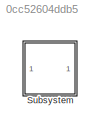
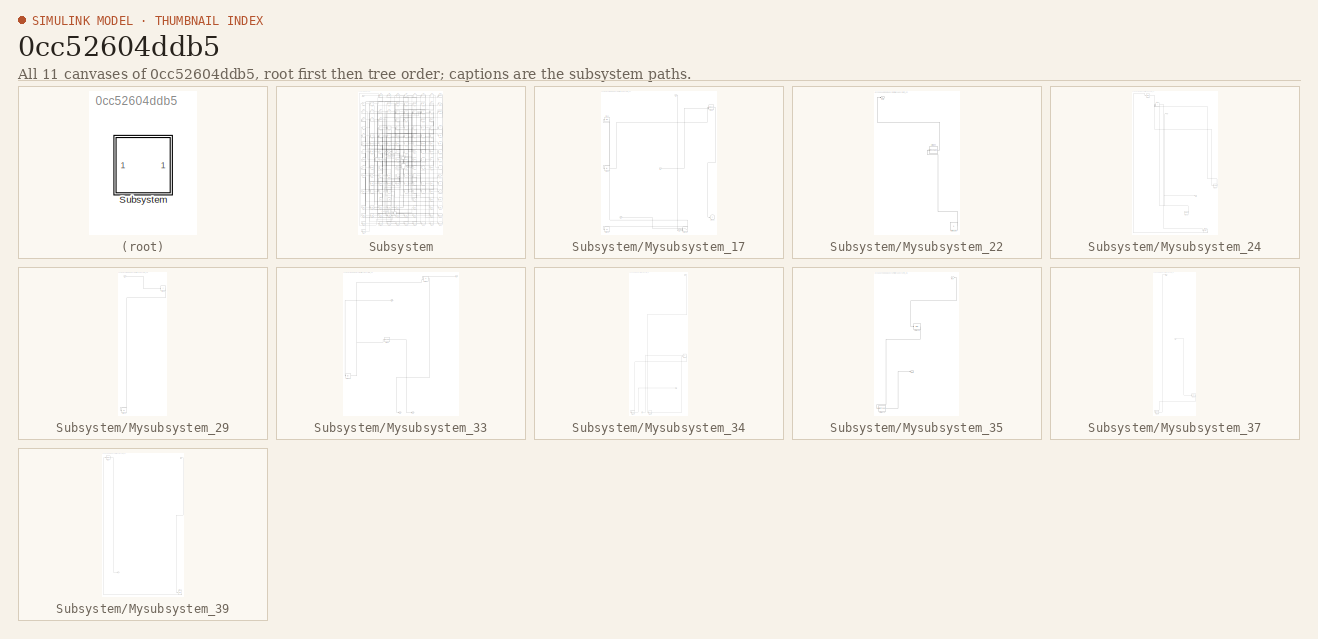
[diagram: thumbnail index - all 11 canvases of the model, root first then tree order]
MODEL slx_0cc52604ddb5
KIND model
CONFIG AbsTol = auto
CONFIG EnableMultiTasking = off
CONFIG FixedStep = auto
CONFIG MaxStep = auto
CONFIG MinStep = auto
CONFIG RelTol = 1e-3
CONFIG SampleTimeConstraint = Unconstrained
CONFIG SolverName = VariableStepAuto
CONFIG StartTime = 0.0
CONFIG StopTime = 10.0
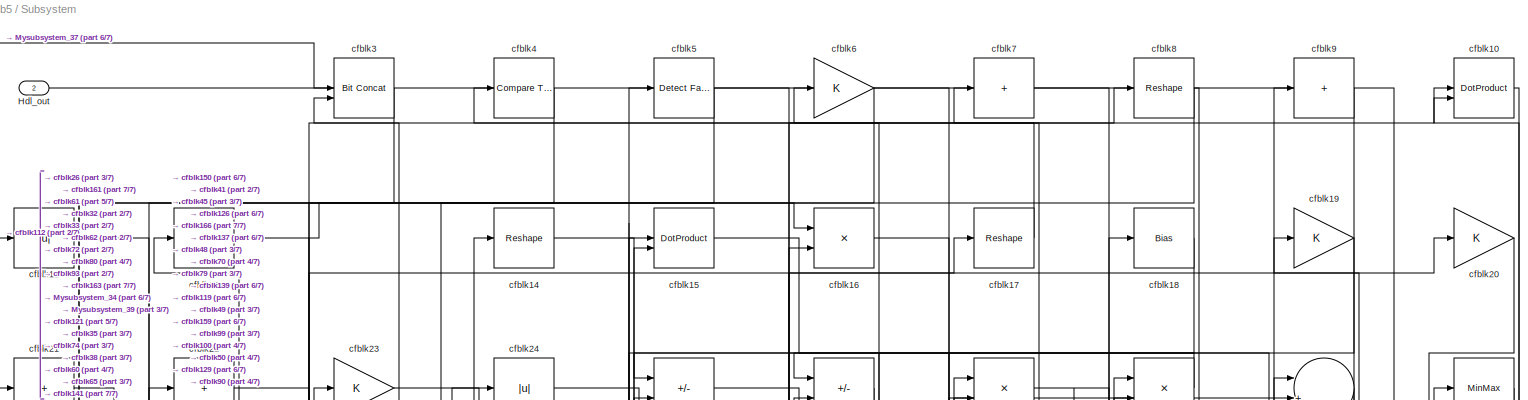
[diagram: Subsystem - part 1/7, full width, top band]
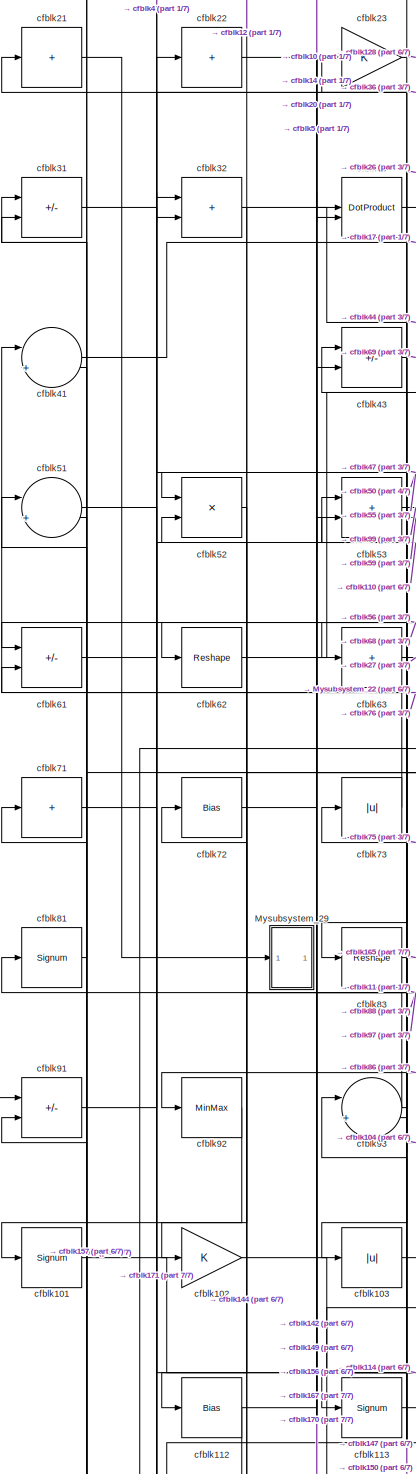
[diagram: Subsystem - part 2/7, middle left region]
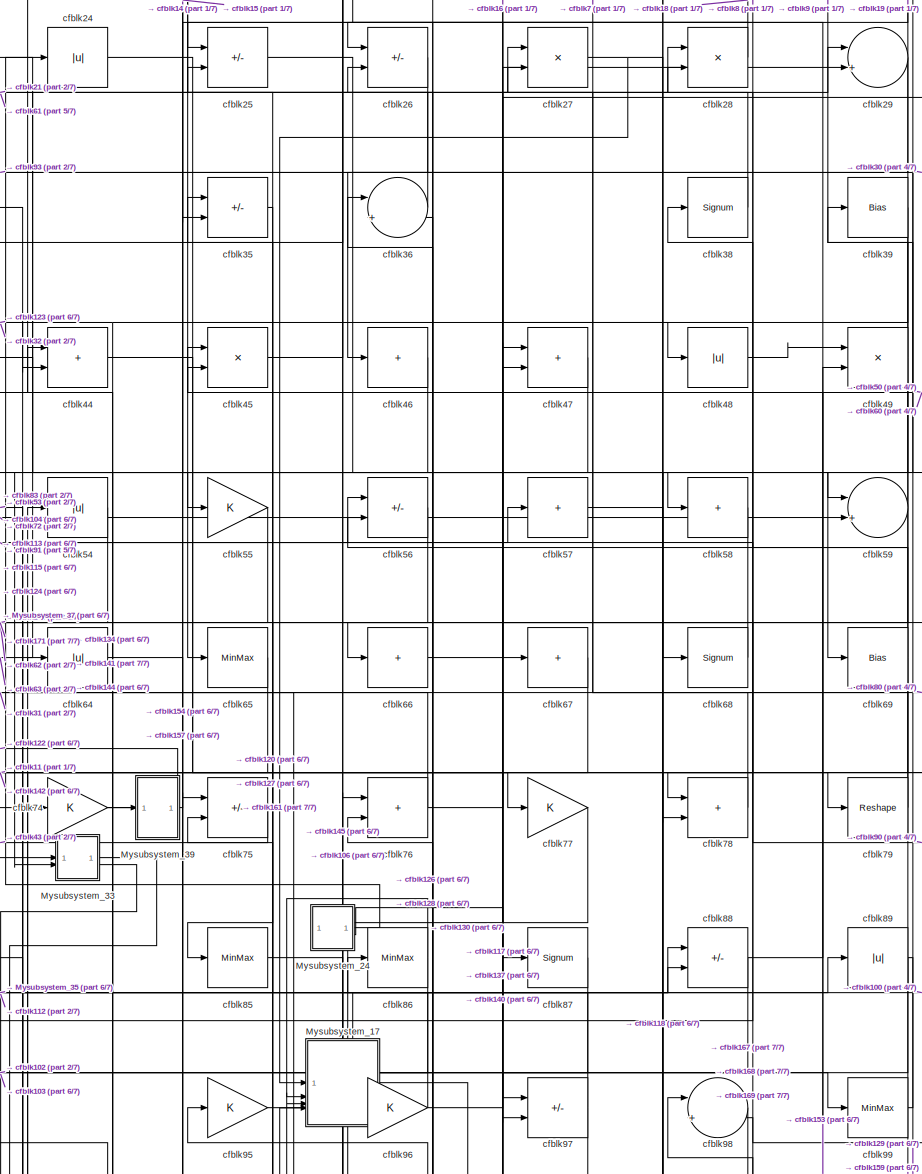
[diagram: Subsystem - part 3/7, central region]
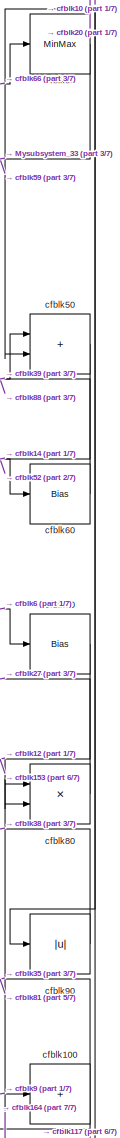
[diagram: Subsystem - part 4/7, middle right region]
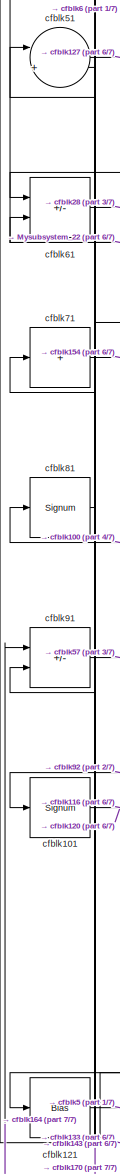
[diagram: Subsystem - part 5/7, middle left region]
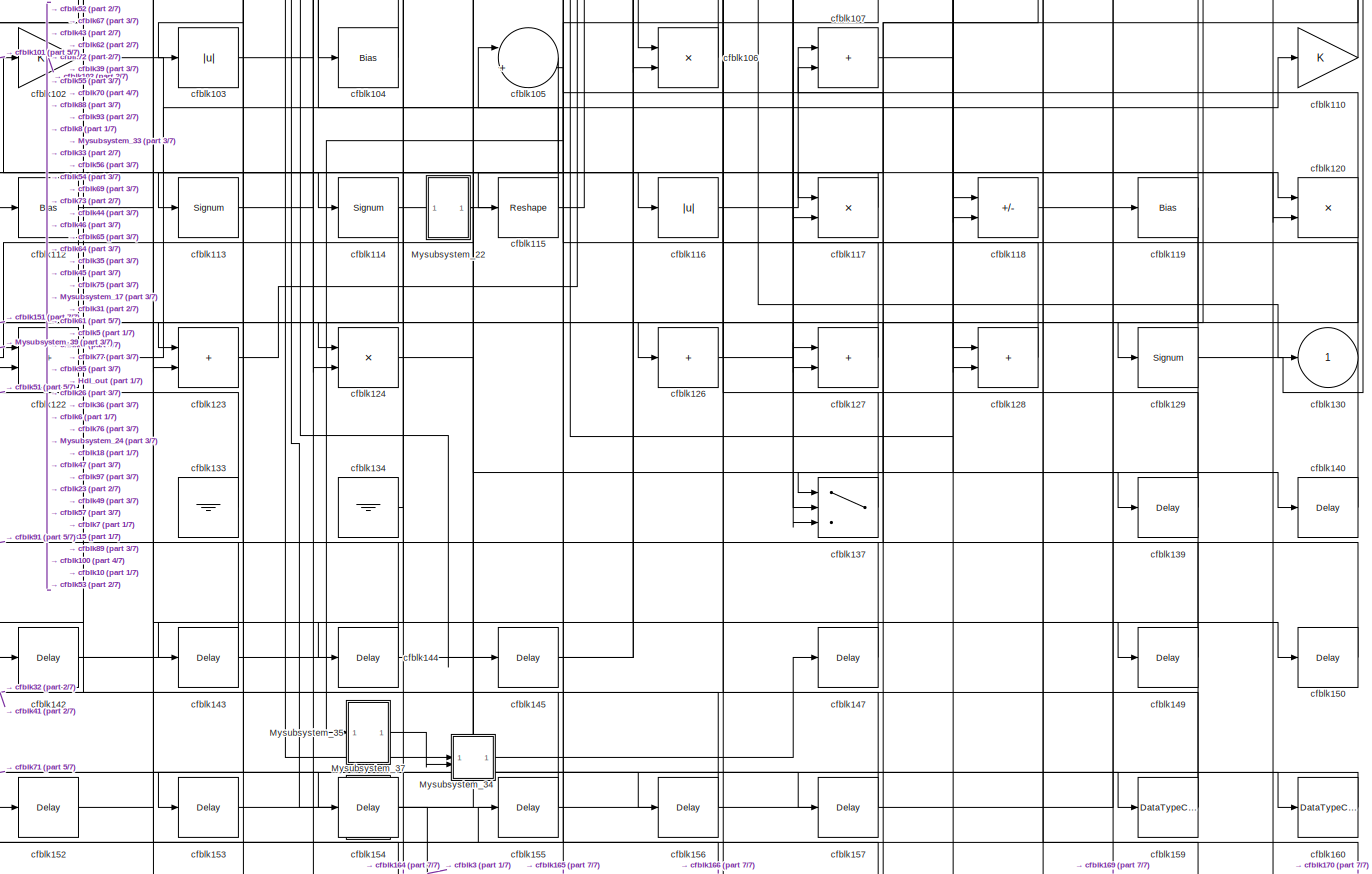
[diagram: Subsystem - part 6/7, full width, bottom band]
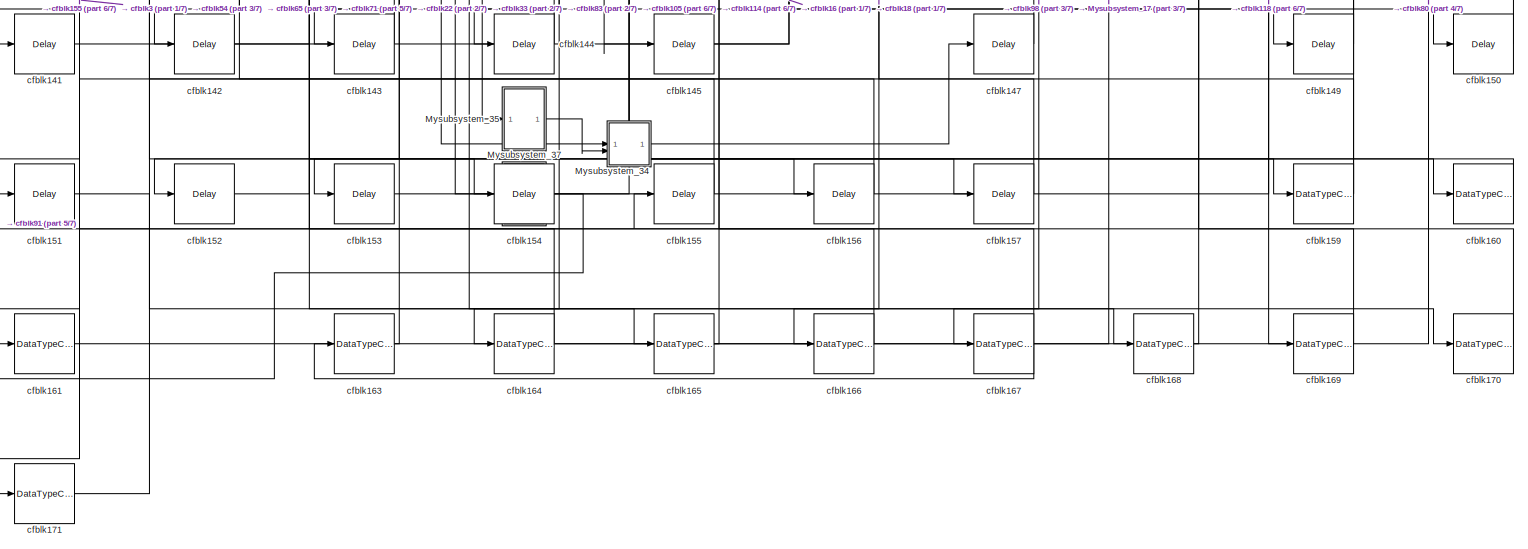
[diagram: Subsystem - part 7/7, full width, bottom band]
BLOCK [SubSystem] Subsystem
BLOCK [Outport] Subsystem/Hdl_out
  OutDataTypeStr = uint8
  Port = 2
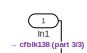
[diagram: Subsystem/Mysubsystem_17 - part 1/3, top center region]
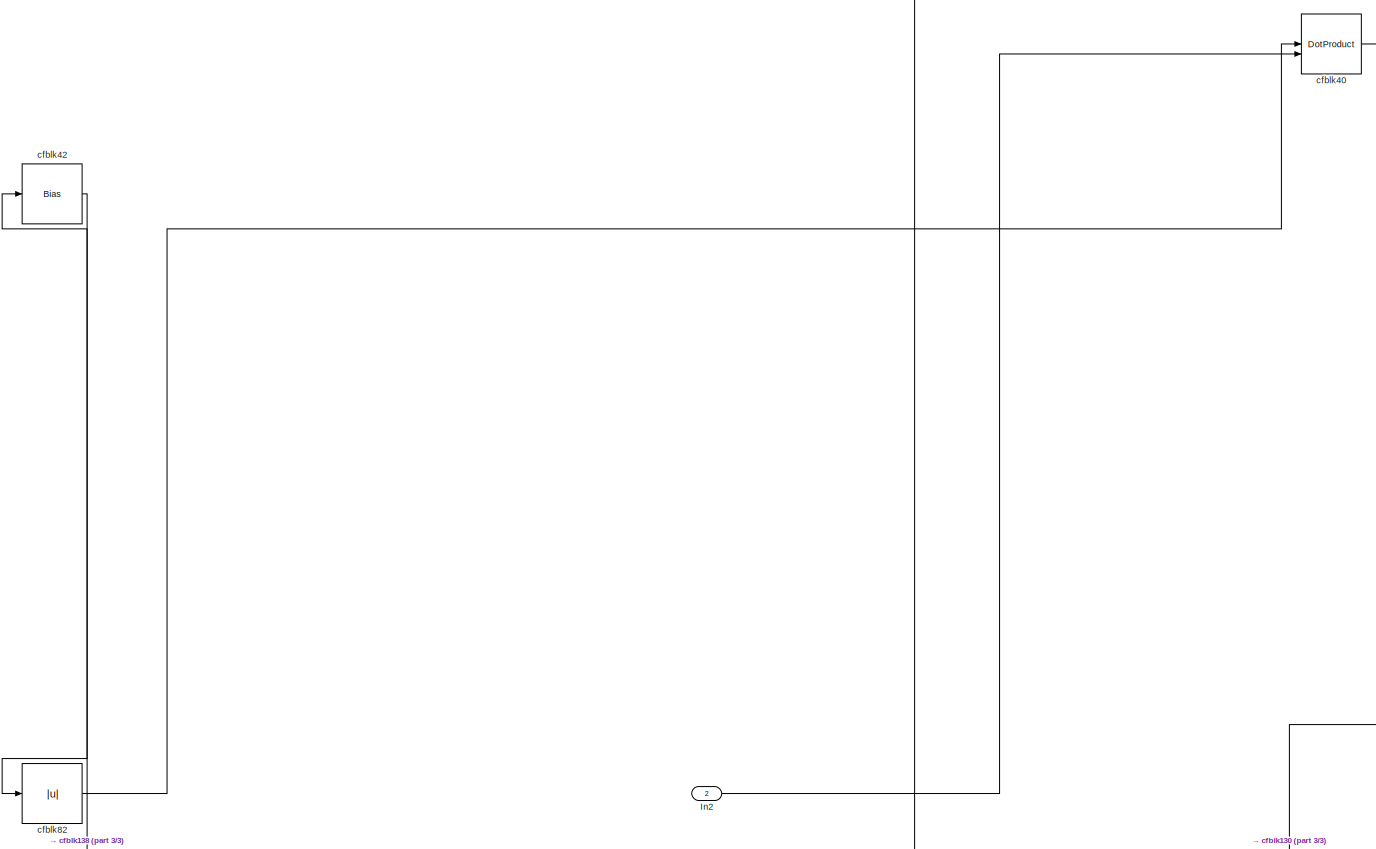
[diagram: Subsystem/Mysubsystem_17 - part 2/3, full width, top band]
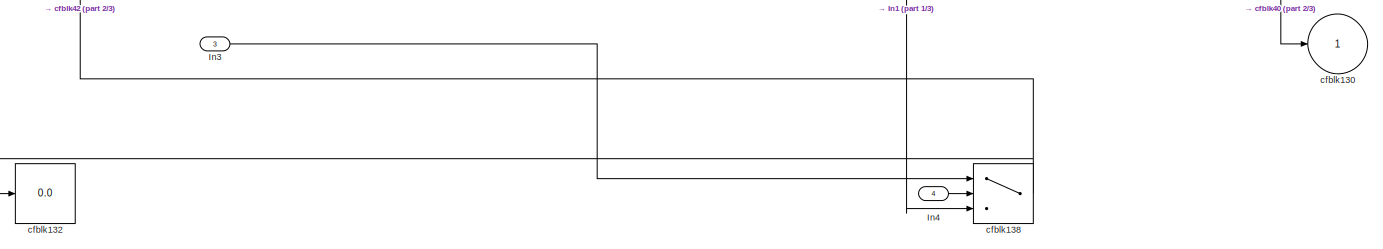
[diagram: Subsystem/Mysubsystem_17 - part 3/3, full width, bottom band]
BLOCK [SubSystem] Subsystem/Mysubsystem_17
  RTWFcnName = Mysubsystem_17
  RTWFcnNameOpts = User specified
  RTWFileNameOpts = Use function name
  RTWSystemCode = Reusable function
  TreatAsAtomicUnit = on
BLOCK [Inport] Subsystem/Mysubsystem_17/In1
BLOCK [Inport] Subsystem/Mysubsystem_17/In2
  Port = 2
BLOCK [Inport] Subsystem/Mysubsystem_17/In3
  Port = 3
BLOCK [Inport] Subsystem/Mysubsystem_17/In4
  Port = 4
BLOCK [Outport] Subsystem/Mysubsystem_17/cfblk130
  VectorParamsAs1DForOutWhenUnconnected = off
BLOCK [Display] Subsystem/Mysubsystem_17/cfblk132
  Decimation = 1
BLOCK [Switch] Subsystem/Mysubsystem_17/cfblk138
  InputSameDT = off
  SaturateOnIntegerOverflow = off
BLOCK [DotProduct] Subsystem/Mysubsystem_17/cfblk40
  OutDataTypeStr = Inherit: Inherit via internal rule
BLOCK [Bias] Subsystem/Mysubsystem_17/cfblk42
  Bias = 0.0
  SaturateOnIntegerOverflow = off
BLOCK [Abs] Subsystem/Mysubsystem_17/cfblk82
  SaturateOnIntegerOverflow = off
BLOCK [SubSystem] Subsystem/Mysubsystem_22
  RTWFcnName = Mysubsystem_22
  RTWFcnNameOpts = User specified
  RTWFileNameOpts = Use function name
  RTWSystemCode = Reusable function
  TreatAsAtomicUnit = on
BLOCK [Outport] Subsystem/Mysubsystem_22/Out1
BLOCK [Constant] Subsystem/Mysubsystem_22/cfblk135
  SampleTime = -1
BLOCK [Reshape] Subsystem/Mysubsystem_22/cfblk94
BLOCK [SubSystem] Subsystem/Mysubsystem_24
  RTWFcnName = Mysubsystem_24
  RTWFcnNameOpts = User specified
  RTWFileNameOpts = Use function name
  RTWSystemCode = Reusable function
  TreatAsAtomicUnit = on
BLOCK [Outport] Subsystem/Mysubsystem_24/Out2
  Port = 2
BLOCK [Reshape] Subsystem/Mysubsystem_24/cfblk109
BLOCK [Sum] Subsystem/Mysubsystem_24/cfblk13
  IconShape = rectangular
BLOCK [Reference] Subsystem/Mysubsystem_24/cfblk136  REF=hdlsllib/Sources/Counter
Limited
  SourceBlock = hdlsllib/Sources/Counter\nLimited
  SourceType = Counter Limited
BLOCK [Delay] Subsystem/Mysubsystem_24/cfblk158
  InputPortMap = u0
  SampleTime = 1
BLOCK [Reference] Subsystem/Mysubsystem_24/cfblk2  REF=hdlsllib/Logic and Bit
Operations/Bit Slice
  SourceBlock = hdlsllib/Logic and Bit\nOperations/Bit Slice
  SourceType = Bit Slice
BLOCK [Outport] Subsystem/Mysubsystem_24/y
BLOCK [SubSystem] Subsystem/Mysubsystem_29
  RTWFcnName = Mysubsystem_29
  RTWFcnNameOpts = User specified
  RTWFileNameOpts = Use function name
  RTWSystemCode = Reusable function
  TreatAsAtomicUnit = on
BLOCK [Inport] Subsystem/Mysubsystem_29/In1
BLOCK [Display] Subsystem/Mysubsystem_29/cfblk131
  Decimation = 1
BLOCK [Sum] Subsystem/Mysubsystem_29/cfblk34
  IconShape = rectangular
  Inputs = +
BLOCK [SubSystem] Subsystem/Mysubsystem_33
  RTWFcnName = Mysubsystem_33
  RTWFcnNameOpts = User specified
  RTWFileNameOpts = Use function name
  RTWSystemCode = Reusable function
  TreatAsAtomicUnit = on
BLOCK [Inport] Subsystem/Mysubsystem_33/In1
BLOCK [Inport] Subsystem/Mysubsystem_33/In2
  Port = 2
BLOCK [Outport] Subsystem/Mysubsystem_33/Out1
BLOCK [Outport] Subsystem/Mysubsystem_33/Out2
  Port = 2
BLOCK [Abs] Subsystem/Mysubsystem_33/cfblk111
  SaturateOnIntegerOverflow = off
BLOCK [Product] Subsystem/Mysubsystem_33/cfblk37
  Inputs = */
  RndMeth = Zero
  SaturateOnIntegerOverflow = on
BLOCK [Reshape] Subsystem/Mysubsystem_33/cfblk84
BLOCK [SubSystem] Subsystem/Mysubsystem_34
  RTWFcnName = Mysubsystem_34
  RTWFcnNameOpts = User specified
  RTWFileNameOpts = Use function name
  RTWSystemCode = Reusable function
  TreatAsAtomicUnit = on
BLOCK [Inport] Subsystem/Mysubsystem_34/In1
BLOCK [Inport] Subsystem/Mysubsystem_34/In2
  Port = 2
BLOCK [Outport] Subsystem/Mysubsystem_34/Out1
BLOCK [Product] Subsystem/Mysubsystem_34/cfblk108
  Inputs = */
  RndMeth = Zero
  SaturateOnIntegerOverflow = on
BLOCK [DataTypeConversion] Subsystem/Mysubsystem_34/cfblk172
  OutDataTypeStr = uint8
  RndMeth = Floor
  SaturateOnIntegerOverflow = off
BLOCK [DataTypeConversion] Subsystem/Mysubsystem_34/cfblk174
  OutDataTypeStr = uint8
  RndMeth = Floor
  SaturateOnIntegerOverflow = off
BLOCK [SubSystem] Subsystem/Mysubsystem_35
  RTWFcnName = Mysubsystem_35
  RTWFcnNameOpts = User specified
  RTWFileNameOpts = Use function name
  RTWSystemCode = Reusable function
  TreatAsAtomicUnit = on
BLOCK [Inport] Subsystem/Mysubsystem_35/In1
BLOCK [Outport] Subsystem/Mysubsystem_35/Out1
BLOCK [Bias] Subsystem/Mysubsystem_35/cfblk125
  Bias = 0.0
  SaturateOnIntegerOverflow = off
BLOCK [DataTypeConversion] Subsystem/Mysubsystem_35/cfblk173
  OutDataTypeStr = uint8
  RndMeth = Floor
  SaturateOnIntegerOverflow = off
BLOCK [SubSystem] Subsystem/Mysubsystem_37
  RTWFcnName = Mysubsystem_37
  RTWFcnNameOpts = User specified
  RTWFileNameOpts = Use function name
  RTWSystemCode = Reusable function
  TreatAsAtomicUnit = on
BLOCK [Inport] Subsystem/Mysubsystem_37/In1
BLOCK [Outport] Subsystem/Mysubsystem_37/Out1
BLOCK [Delay] Subsystem/Mysubsystem_37/cfblk146
  InputPortMap = u0
  SampleTime = 1
BLOCK [DataTypeConversion] Subsystem/Mysubsystem_37/cfblk162
  OutDataTypeStr = uint8
  RndMeth = Floor
  SaturateOnIntegerOverflow = off
BLOCK [SubSystem] Subsystem/Mysubsystem_39
  RTWFcnName = Mysubsystem_39
  RTWFcnNameOpts = User specified
  RTWFileNameOpts = Use function name
  RTWSystemCode = Reusable function
  TreatAsAtomicUnit = on
BLOCK [Inport] Subsystem/Mysubsystem_39/In1
BLOCK [Outport] Subsystem/Mysubsystem_39/Y
BLOCK [Reference] Subsystem/Mysubsystem_39/cfblk1  REF=simulink/Logic and Bit
Operations/Detect
Decrease
  LibrarySourceBlock = hdlsllib/Logic and Bit\nOperations/Detect\nDecrease
  SourceBlock = simulink/Logic and Bit\nOperations/Detect\nDecrease
  SourceType = Detect Decrease
BLOCK [Delay] Subsystem/Mysubsystem_39/cfblk148
  InputPortMap = u0
  SampleTime = 1
BLOCK [DotProduct] Subsystem/cfblk10
  OutDataTypeStr = uint8
BLOCK [Sum] Subsystem/cfblk100
  IconShape = rectangular
  Inputs = +
  OutDataTypeStr = uint8
BLOCK [Signum] Subsystem/cfblk101
BLOCK [Gain] Subsystem/cfblk102
  OutDataTypeStr = uint8
BLOCK [Abs] Subsystem/cfblk103
  OutDataTypeStr = uint8
  SaturateOnIntegerOverflow = off
BLOCK [Bias] Subsystem/cfblk104
  Bias = 0.0
  SaturateOnIntegerOverflow = off
BLOCK [Sum] Subsystem/cfblk105
  Inputs = |++
  OutDataTypeStr = uint8
BLOCK [Product] Subsystem/cfblk106
  Inputs = */
  OutDataTypeStr = uint8
  RndMeth = Zero
  SaturateOnIntegerOverflow = on
BLOCK [Sum] Subsystem/cfblk107
  IconShape = rectangular
  OutDataTypeStr = uint8
BLOCK [Abs] Subsystem/cfblk11
  OutDataTypeStr = uint8
  SaturateOnIntegerOverflow = off
BLOCK [Gain] Subsystem/cfblk110
  OutDataTypeStr = uint8
BLOCK [Bias] Subsystem/cfblk112
  Bias = 0.0
  SaturateOnIntegerOverflow = off
BLOCK [Signum] Subsystem/cfblk113
BLOCK [Signum] Subsystem/cfblk114
BLOCK [Reshape] Subsystem/cfblk115
BLOCK [Abs] Subsystem/cfblk116
  OutDataTypeStr = uint8
  SaturateOnIntegerOverflow = off
BLOCK [Product] Subsystem/cfblk117
  Inputs = */
  OutDataTypeStr = uint8
  RndMeth = Zero
  SaturateOnIntegerOverflow = on
BLOCK [Sum] Subsystem/cfblk118
  IconShape = rectangular
  Inputs = +-
  OutDataTypeStr = uint8
BLOCK [Bias] Subsystem/cfblk119
  Bias = 0.0
  SaturateOnIntegerOverflow = off
BLOCK [Sum] Subsystem/cfblk12
  IconShape = rectangular
  Inputs = +
  OutDataTypeStr = uint8
BLOCK [Product] Subsystem/cfblk120
  Inputs = */
  OutDataTypeStr = uint8
  RndMeth = Zero
  SaturateOnIntegerOverflow = on
BLOCK [Bias] Subsystem/cfblk121
  Bias = 0.0
  SaturateOnIntegerOverflow = off
BLOCK [Sum] Subsystem/cfblk122
  IconShape = rectangular
  OutDataTypeStr = uint8
BLOCK [Sum] Subsystem/cfblk123
  IconShape = rectangular
  OutDataTypeStr = uint8
BLOCK [Product] Subsystem/cfblk124
  Inputs = */
  OutDataTypeStr = uint8
  RndMeth = Zero
  SaturateOnIntegerOverflow = on
BLOCK [Sum] Subsystem/cfblk126
  IconShape = rectangular
  Inputs = +
  OutDataTypeStr = uint8
BLOCK [Sum] Subsystem/cfblk127
  IconShape = rectangular
  OutDataTypeStr = uint8
BLOCK [Sum] Subsystem/cfblk128
  IconShape = rectangular
  OutDataTypeStr = uint8
BLOCK [Signum] Subsystem/cfblk129
BLOCK [Outport] Subsystem/cfblk130
  OutDataTypeStr = uint8
  VectorParamsAs1DForOutWhenUnconnected = off
BLOCK [Ground] Subsystem/cfblk133
BLOCK [Ground] Subsystem/cfblk134
BLOCK [Switch] Subsystem/cfblk137
  InputSameDT = off
  OutDataTypeStr = uint8
  SaturateOnIntegerOverflow = off
BLOCK [Delay] Subsystem/cfblk139
  InputPortMap = u0
  SampleTime = 1
BLOCK [Reshape] Subsystem/cfblk14
BLOCK [Delay] Subsystem/cfblk140
  InputPortMap = u0
  SampleTime = 1
BLOCK [Delay] Subsystem/cfblk141
  InputPortMap = u0
  SampleTime = 1
BLOCK [Delay] Subsystem/cfblk142
  InputPortMap = u0
  SampleTime = 1
BLOCK [Delay] Subsystem/cfblk143
  InputPortMap = u0
  SampleTime = 1
BLOCK [Delay] Subsystem/cfblk144
  InputPortMap = u0
  SampleTime = 1
BLOCK [Delay] Subsystem/cfblk145
  InputPortMap = u0
  SampleTime = 1
BLOCK [Delay] Subsystem/cfblk147
  InputPortMap = u0
  SampleTime = 1
BLOCK [Delay] Subsystem/cfblk149
  InputPortMap = u0
  SampleTime = 1
BLOCK [DotProduct] Subsystem/cfblk15
  OutDataTypeStr = uint8
BLOCK [Delay] Subsystem/cfblk150
  InputPortMap = u0
  SampleTime = 1
BLOCK [Delay] Subsystem/cfblk151
  InputPortMap = u0
  SampleTime = 1
BLOCK [Delay] Subsystem/cfblk152
  InputPortMap = u0
  SampleTime = 1
BLOCK [Delay] Subsystem/cfblk153
  InputPortMap = u0
  SampleTime = 1
BLOCK [Delay] Subsystem/cfblk154
  InputPortMap = u0
  SampleTime = 1
BLOCK [Delay] Subsystem/cfblk155
  InputPortMap = u0
  SampleTime = 1
BLOCK [Delay] Subsystem/cfblk156
  InputPortMap = u0
  SampleTime = 1
BLOCK [Delay] Subsystem/cfblk157
  InputPortMap = u0
  SampleTime = 1
BLOCK [DataTypeConversion] Subsystem/cfblk159
  OutDataTypeStr = uint8
  RndMeth = Floor
  SaturateOnIntegerOverflow = off
BLOCK [Product] Subsystem/cfblk16
  Inputs = */
  OutDataTypeStr = uint8
  RndMeth = Zero
  SaturateOnIntegerOverflow = on
BLOCK [DataTypeConversion] Subsystem/cfblk160
  OutDataTypeStr = uint8
  RndMeth = Floor
  SaturateOnIntegerOverflow = off
BLOCK [DataTypeConversion] Subsystem/cfblk161
  OutDataTypeStr = uint8
  RndMeth = Floor
  SaturateOnIntegerOverflow = off
BLOCK [DataTypeConversion] Subsystem/cfblk163
  OutDataTypeStr = uint8
  RndMeth = Floor
  SaturateOnIntegerOverflow = off
BLOCK [DataTypeConversion] Subsystem/cfblk164
  OutDataTypeStr = uint8
  RndMeth = Floor
  SaturateOnIntegerOverflow = off
BLOCK [DataTypeConversion] Subsystem/cfblk165
  OutDataTypeStr = uint8
  RndMeth = Floor
  SaturateOnIntegerOverflow = off
BLOCK [DataTypeConversion] Subsystem/cfblk166
  OutDataTypeStr = uint8
  RndMeth = Floor
  SaturateOnIntegerOverflow = off
BLOCK [DataTypeConversion] Subsystem/cfblk167
  OutDataTypeStr = uint8
  RndMeth = Floor
  SaturateOnIntegerOverflow = off
BLOCK [DataTypeConversion] Subsystem/cfblk168
  OutDataTypeStr = uint8
  RndMeth = Floor
  SaturateOnIntegerOverflow = off
BLOCK [DataTypeConversion] Subsystem/cfblk169
  OutDataTypeStr = uint8
  RndMeth = Floor
  SaturateOnIntegerOverflow = off
BLOCK [Reshape] Subsystem/cfblk17
BLOCK [DataTypeConversion] Subsystem/cfblk170
  OutDataTypeStr = uint8
  RndMeth = Floor
  SaturateOnIntegerOverflow = off
BLOCK [DataTypeConversion] Subsystem/cfblk171
  OutDataTypeStr = uint8
  RndMeth = Floor
  SaturateOnIntegerOverflow = off
BLOCK [Bias] Subsystem/cfblk18
  Bias = 0.0
  SaturateOnIntegerOverflow = off
BLOCK [Gain] Subsystem/cfblk19
  OutDataTypeStr = uint8
BLOCK [Gain] Subsystem/cfblk20
  OutDataTypeStr = uint8
BLOCK [Sum] Subsystem/cfblk21
  IconShape = rectangular
  Inputs = +
  OutDataTypeStr = uint8
BLOCK [Sum] Subsystem/cfblk22
  IconShape = rectangular
  Inputs = +
  OutDataTypeStr = uint8
BLOCK [Gain] Subsystem/cfblk23
  OutDataTypeStr = uint8
BLOCK [Abs] Subsystem/cfblk24
  OutDataTypeStr = uint8
  SaturateOnIntegerOverflow = off
BLOCK [Sum] Subsystem/cfblk25
  IconShape = rectangular
  Inputs = +-
  OutDataTypeStr = uint8
BLOCK [Sum] Subsystem/cfblk26
  IconShape = rectangular
  Inputs = +-
  OutDataTypeStr = uint8
BLOCK [Product] Subsystem/cfblk27
  Inputs = */
  OutDataTypeStr = uint8
  RndMeth = Zero
  SaturateOnIntegerOverflow = on
BLOCK [Product] Subsystem/cfblk28
  Inputs = */
  OutDataTypeStr = uint8
  RndMeth = Zero
  SaturateOnIntegerOverflow = on
BLOCK [Sum] Subsystem/cfblk29
  Inputs = |++
  OutDataTypeStr = uint8
BLOCK [Reference] Subsystem/cfblk3  REF=hdlsllib/Logic and Bit
Operations/Bit Concat
  SourceBlock = hdlsllib/Logic and Bit\nOperations/Bit Concat
  SourceType = Bit Concat
BLOCK [MinMax] Subsystem/cfblk30
  OutDataTypeStr = uint8
BLOCK [Sum] Subsystem/cfblk31
  IconShape = rectangular
  Inputs = +-
  OutDataTypeStr = uint8
BLOCK [Sum] Subsystem/cfblk32
  IconShape = rectangular
  OutDataTypeStr = uint8
BLOCK [DotProduct] Subsystem/cfblk33
  OutDataTypeStr = uint8
BLOCK [Sum] Subsystem/cfblk35
  IconShape = rectangular
  Inputs = +-
  OutDataTypeStr = uint8
BLOCK [Sum] Subsystem/cfblk36
  Inputs = |++
  OutDataTypeStr = uint8
BLOCK [Signum] Subsystem/cfblk38
BLOCK [Bias] Subsystem/cfblk39
  Bias = 0.0
  SaturateOnIntegerOverflow = off
BLOCK [Reference] Subsystem/cfblk4  REF=hdlsllib/Logic and Bit
Operations/Compare
To Zero
  SourceBlock = hdlsllib/Logic and Bit\nOperations/Compare\nTo Zero
  SourceType = Compare To Zero
BLOCK [Sum] Subsystem/cfblk41
  Inputs = |++
  OutDataTypeStr = uint8
BLOCK [Sum] Subsystem/cfblk43
  IconShape = rectangular
  Inputs = +-
  OutDataTypeStr = uint8
BLOCK [Sum] Subsystem/cfblk44
  IconShape = rectangular
  OutDataTypeStr = uint8
BLOCK [Product] Subsystem/cfblk45
  Inputs = */
  OutDataTypeStr = uint8
  RndMeth = Zero
  SaturateOnIntegerOverflow = on
BLOCK [Sum] Subsystem/cfblk46
  IconShape = rectangular
  Inputs = +
  OutDataTypeStr = uint8
BLOCK [Sum] Subsystem/cfblk47
  IconShape = rectangular
  OutDataTypeStr = uint8
BLOCK [Abs] Subsystem/cfblk48
  OutDataTypeStr = uint8
  SaturateOnIntegerOverflow = off
BLOCK [Product] Subsystem/cfblk49
  Inputs = */
  OutDataTypeStr = uint8
  RndMeth = Zero
  SaturateOnIntegerOverflow = on
BLOCK [Reference] Subsystem/cfblk5  REF=hdlsllib/Logic and Bit
Operations/Detect Fall
Nonpositive
  SourceBlock = hdlsllib/Logic and Bit\nOperations/Detect Fall\nNonpositive
  SourceType = Detect Fall Nonpositive
BLOCK [Sum] Subsystem/cfblk50
  IconShape = rectangular
  OutDataTypeStr = uint8
BLOCK [Sum] Subsystem/cfblk51
  Inputs = |++
  OutDataTypeStr = uint8
BLOCK [Product] Subsystem/cfblk52
  Inputs = */
  OutDataTypeStr = uint8
  RndMeth = Zero
  SaturateOnIntegerOverflow = on
BLOCK [Sum] Subsystem/cfblk53
  IconShape = rectangular
  OutDataTypeStr = uint8
BLOCK [Abs] Subsystem/cfblk54
  OutDataTypeStr = uint8
  SaturateOnIntegerOverflow = off
BLOCK [Gain] Subsystem/cfblk55
  OutDataTypeStr = uint8
BLOCK [Sum] Subsystem/cfblk56
  IconShape = rectangular
  Inputs = +-
  OutDataTypeStr = uint8
BLOCK [Sum] Subsystem/cfblk57
  IconShape = rectangular
  Inputs = +
  OutDataTypeStr = uint8
BLOCK [Sum] Subsystem/cfblk58
  IconShape = rectangular
  Inputs = +
  OutDataTypeStr = uint8
BLOCK [Sum] Subsystem/cfblk59
  Inputs = |++
  OutDataTypeStr = uint8
BLOCK [Gain] Subsystem/cfblk6
  OutDataTypeStr = uint8
BLOCK [Bias] Subsystem/cfblk60
  Bias = 0.0
  SaturateOnIntegerOverflow = off
BLOCK [Sum] Subsystem/cfblk61
  IconShape = rectangular
  Inputs = +-
  OutDataTypeStr = uint8
BLOCK [Reshape] Subsystem/cfblk62
BLOCK [Sum] Subsystem/cfblk63
  IconShape = rectangular
  Inputs = +
  OutDataTypeStr = uint8
BLOCK [Abs] Subsystem/cfblk64
  OutDataTypeStr = uint8
  SaturateOnIntegerOverflow = off
BLOCK [MinMax] Subsystem/cfblk65
  OutDataTypeStr = uint8
BLOCK [Sum] Subsystem/cfblk66
  IconShape = rectangular
  Inputs = +
  OutDataTypeStr = uint8
BLOCK [Sum] Subsystem/cfblk67
  IconShape = rectangular
  Inputs = +
  OutDataTypeStr = uint8
BLOCK [Signum] Subsystem/cfblk68
BLOCK [Bias] Subsystem/cfblk69
  Bias = 0.0
  SaturateOnIntegerOverflow = off
BLOCK [Sum] Subsystem/cfblk7
  IconShape = rectangular
  Inputs = +
  OutDataTypeStr = uint8
BLOCK [Bias] Subsystem/cfblk70
  Bias = 0.0
  SaturateOnIntegerOverflow = off
BLOCK [Sum] Subsystem/cfblk71
  IconShape = rectangular
  Inputs = +
  OutDataTypeStr = uint8
BLOCK [Bias] Subsystem/cfblk72
  Bias = 0.0
  SaturateOnIntegerOverflow = off
BLOCK [Abs] Subsystem/cfblk73
  OutDataTypeStr = uint8
  SaturateOnIntegerOverflow = off
BLOCK [Gain] Subsystem/cfblk74
  OutDataTypeStr = uint8
BLOCK [Sum] Subsystem/cfblk75
  IconShape = rectangular
  Inputs = +-
  OutDataTypeStr = uint8
BLOCK [Sum] Subsystem/cfblk76
  IconShape = rectangular
  OutDataTypeStr = uint8
BLOCK [Gain] Subsystem/cfblk77
  OutDataTypeStr = uint8
BLOCK [Sum] Subsystem/cfblk78
  IconShape = rectangular
  OutDataTypeStr = uint8
BLOCK [Reshape] Subsystem/cfblk79
BLOCK [Reshape] Subsystem/cfblk8
BLOCK [Product] Subsystem/cfblk80
  Inputs = */
  OutDataTypeStr = uint8
  RndMeth = Zero
  SaturateOnIntegerOverflow = on
BLOCK [Signum] Subsystem/cfblk81
BLOCK [Reshape] Subsystem/cfblk83
BLOCK [MinMax] Subsystem/cfblk85
  OutDataTypeStr = uint8
BLOCK [MinMax] Subsystem/cfblk86
  OutDataTypeStr = uint8
BLOCK [Signum] Subsystem/cfblk87
BLOCK [Sum] Subsystem/cfblk88
  IconShape = rectangular
  Inputs = +-
  OutDataTypeStr = uint8
BLOCK [Abs] Subsystem/cfblk89
  OutDataTypeStr = uint8
  SaturateOnIntegerOverflow = off
BLOCK [Sum] Subsystem/cfblk9
  IconShape = rectangular
  Inputs = +
  OutDataTypeStr = uint8
BLOCK [Abs] Subsystem/cfblk90
  OutDataTypeStr = uint8
  SaturateOnIntegerOverflow = off
BLOCK [Sum] Subsystem/cfblk91
  IconShape = rectangular
  Inputs = +-
  OutDataTypeStr = uint8
BLOCK [MinMax] Subsystem/cfblk92
  OutDataTypeStr = uint8
BLOCK [Sum] Subsystem/cfblk93
  Inputs = |++
  OutDataTypeStr = uint8
BLOCK [Gain] Subsystem/cfblk95
  OutDataTypeStr = uint8
BLOCK [Gain] Subsystem/cfblk96
  OutDataTypeStr = uint8
BLOCK [Sum] Subsystem/cfblk97
  IconShape = rectangular
  Inputs = +-
  OutDataTypeStr = uint8
BLOCK [Sum] Subsystem/cfblk98
  Inputs = |++
  OutDataTypeStr = uint8
BLOCK [MinMax] Subsystem/cfblk99
  OutDataTypeStr = uint8
LINE Subsystem/Mysubsystem_17/In1:1 -> Subsystem/Mysubsystem_17/cfblk138:3
LINE Subsystem/Mysubsystem_17/In2:1 -> Subsystem/Mysubsystem_17/cfblk40:2
LINE Subsystem/Mysubsystem_17/In3:1 -> Subsystem/Mysubsystem_17/cfblk138:1
LINE Subsystem/Mysubsystem_17/In4:1 -> Subsystem/Mysubsystem_17/cfblk138:2
NET Subsystem/Mysubsystem_17/cfblk138:1 -> Subsystem/Mysubsystem_17/cfblk132:1, Subsystem/Mysubsystem_17/cfblk42:1
LINE Subsystem/Mysubsystem_17/cfblk40:1 -> Subsystem/Mysubsystem_17/cfblk130:1
LINE Subsystem/Mysubsystem_17/cfblk42:1 -> Subsystem/Mysubsystem_17/cfblk82:1
LINE Subsystem/Mysubsystem_17/cfblk82:1 -> Subsystem/Mysubsystem_17/cfblk40:1
LINE Subsystem/Mysubsystem_17:1 -> Subsystem/cfblk130:1
LINE Subsystem/Mysubsystem_22/cfblk135:1 -> Subsystem/Mysubsystem_22/cfblk94:1
LINE Subsystem/Mysubsystem_22/cfblk94:1 -> Subsystem/Mysubsystem_22/Out1:1
NET Subsystem/Mysubsystem_22:1 -> Subsystem/cfblk31:1, Subsystem/cfblk61:2
LINE Subsystem/Mysubsystem_24/cfblk109:1 -> Subsystem/Mysubsystem_24/cfblk13:1
NET Subsystem/Mysubsystem_24/cfblk136:1 -> Subsystem/Mysubsystem_24/cfblk13:2, Subsystem/Mysubsystem_24/y:1
NET Subsystem/Mysubsystem_24/cfblk13:1 -> Subsystem/Mysubsystem_24/Out2:1, Subsystem/Mysubsystem_24/cfblk158:1
LINE Subsystem/Mysubsystem_24/cfblk158:1 -> Subsystem/Mysubsystem_24/cfblk2:1
LINE Subsystem/Mysubsystem_24/cfblk2:1 -> Subsystem/Mysubsystem_24/cfblk109:1
LINE Subsystem/Mysubsystem_24:1 -> Subsystem/cfblk24:1
LINE Subsystem/Mysubsystem_24:2 -> Subsystem/cfblk117:2
LINE Subsystem/Mysubsystem_29/In1:1 -> Subsystem/Mysubsystem_29/cfblk34:1
LINE Subsystem/Mysubsystem_29/cfblk34:1 -> Subsystem/Mysubsystem_29/cfblk131:1
LINE Subsystem/Mysubsystem_33/In1:1 -> Subsystem/Mysubsystem_33/cfblk37:1
LINE Subsystem/Mysubsystem_33/In2:1 -> Subsystem/Mysubsystem_33/cfblk111:1
NET Subsystem/Mysubsystem_33/cfblk111:1 -> Subsystem/Mysubsystem_33/cfblk37:2, Subsystem/Mysubsystem_33/cfblk84:1
LINE Subsystem/Mysubsystem_33/cfblk37:1 -> Subsystem/Mysubsystem_33/Out1:1
LINE Subsystem/Mysubsystem_33/cfblk84:1 -> Subsystem/Mysubsystem_33/Out2:1
LINE Subsystem/Mysubsystem_33:1 -> Subsystem/cfblk145:1
LINE Subsystem/Mysubsystem_33:2 -> Subsystem/Mysubsystem_37:1
LINE Subsystem/Mysubsystem_34/In1:1 -> Subsystem/Mysubsystem_34/cfblk174:1
LINE Subsystem/Mysubsystem_34/In2:1 -> Subsystem/Mysubsystem_34/cfblk108:1
LINE Subsystem/Mysubsystem_34/cfblk108:1 -> Subsystem/Mysubsystem_34/cfblk172:1
LINE Subsystem/Mysubsystem_34/cfblk172:1 -> Subsystem/Mysubsystem_34/Out1:1
LINE Subsystem/Mysubsystem_34/cfblk174:1 -> Subsystem/Mysubsystem_34/cfblk108:2
LINE Subsystem/Mysubsystem_34:1 -> Subsystem/cfblk147:1
LINE Subsystem/Mysubsystem_35/In1:1 -> Subsystem/Mysubsystem_35/cfblk125:1
LINE Subsystem/Mysubsystem_35/cfblk125:1 -> Subsystem/Mysubsystem_35/cfblk173:1
LINE Subsystem/Mysubsystem_35/cfblk173:1 -> Subsystem/Mysubsystem_35/Out1:1
LINE Subsystem/Mysubsystem_35:1 -> Subsystem/Mysubsystem_34:2
LINE Subsystem/Mysubsystem_37/In1:1 -> Subsystem/Mysubsystem_37/cfblk146:1
LINE Subsystem/Mysubsystem_37/cfblk146:1 -> Subsystem/Mysubsystem_37/cfblk162:1
LINE Subsystem/Mysubsystem_37/cfblk162:1 -> Subsystem/Mysubsystem_37/Out1:1
LINE Subsystem/Mysubsystem_37:1 -> Subsystem/cfblk3:1
LINE Subsystem/Mysubsystem_39/In1:1 -> Subsystem/Mysubsystem_39/cfblk148:1
LINE Subsystem/Mysubsystem_39/cfblk148:1 -> Subsystem/Mysubsystem_39/cfblk1:1
LINE Subsystem/Mysubsystem_39/cfblk1:1 -> Subsystem/Mysubsystem_39/Y:1
LINE Subsystem/Mysubsystem_39:1 -> Subsystem/cfblk122:1
NET Subsystem/cfblk100:1 -> Subsystem/cfblk117:1, Subsystem/cfblk35:1, Subsystem/cfblk81:1
NET Subsystem/cfblk101:1 -> Subsystem/cfblk116:1, Subsystem/cfblk120:2
LINE Subsystem/cfblk102:1 -> Subsystem/cfblk114:1
LINE Subsystem/cfblk103:1 -> Subsystem/cfblk56:2
LINE Subsystem/cfblk104:1 -> Subsystem/cfblk73:1
LINE Subsystem/cfblk105:1 -> Subsystem/cfblk164:1
LINE Subsystem/cfblk106:1 -> Subsystem/cfblk95:1
LINE Subsystem/cfblk107:1 -> Subsystem/cfblk118:1
LINE Subsystem/cfblk10:1 -> Subsystem/cfblk90:1
LINE Subsystem/cfblk110:1 -> Subsystem/cfblk53:1
NET Subsystem/cfblk112:1 -> Subsystem/cfblk11:1, Subsystem/cfblk88:2
LINE Subsystem/cfblk113:1 -> Subsystem/cfblk88:1
NET Subsystem/cfblk114:1 -> Subsystem/cfblk123:2, Subsystem/cfblk151:1, Subsystem/cfblk160:1
LINE Subsystem/cfblk115:1 -> Subsystem/cfblk54:1
LINE Subsystem/cfblk116:1 -> Subsystem/cfblk107:1
LINE Subsystem/cfblk117:1 -> Subsystem/cfblk113:1
LINE Subsystem/cfblk118:1 -> Subsystem/cfblk169:1
LINE Subsystem/cfblk119:1 -> Subsystem/cfblk137:1
LINE Subsystem/cfblk11:1 -> Subsystem/cfblk79:1
NET Subsystem/cfblk120:1 -> Subsystem/cfblk126:1, Subsystem/cfblk45:1
LINE Subsystem/cfblk121:1 -> Subsystem/cfblk5:1
LINE Subsystem/cfblk122:1 -> Subsystem/cfblk110:1
LINE Subsystem/cfblk123:1 -> Subsystem/Mysubsystem_17:3
LINE Subsystem/cfblk124:1 -> Subsystem/cfblk140:1
NET Subsystem/cfblk126:1 -> Subsystem/cfblk47:2, Subsystem/cfblk6:1
LINE Subsystem/cfblk127:1 -> Subsystem/cfblk75:2
LINE Subsystem/cfblk128:1 -> Subsystem/cfblk36:1
LINE Subsystem/cfblk129:1 -> Subsystem/cfblk10:1
NET Subsystem/cfblk12:1 -> Subsystem/cfblk16:1, Subsystem/cfblk80:2
LINE Subsystem/cfblk133:1 -> Subsystem/cfblk51:1
LINE Subsystem/cfblk134:1 -> Subsystem/cfblk44:1
LINE Subsystem/cfblk137:1 -> Subsystem/cfblk76:2
LINE Subsystem/cfblk139:1 -> Subsystem/cfblk127:1
LINE Subsystem/cfblk140:1 -> Subsystem/cfblk47:1
LINE Subsystem/cfblk141:1 -> Subsystem/cfblk16:2
LINE Subsystem/cfblk142:1 -> Subsystem/cfblk43:2
LINE Subsystem/cfblk143:1 -> Subsystem/cfblk91:2
LINE Subsystem/cfblk144:1 -> Subsystem/cfblk52:2
LINE Subsystem/cfblk145:1 -> Subsystem/cfblk76:1
LINE Subsystem/cfblk147:1 -> Subsystem/cfblk53:2
LINE Subsystem/cfblk149:1 -> Subsystem/cfblk107:2
NET Subsystem/cfblk14:1 -> Subsystem/cfblk60:1, Subsystem/cfblk65:1
LINE Subsystem/cfblk150:1 -> Subsystem/cfblk93:1
LINE Subsystem/cfblk151:1 -> Subsystem/cfblk168:1
LINE Subsystem/cfblk152:1 -> Subsystem/cfblk159:1
LINE Subsystem/cfblk153:1 -> Subsystem/cfblk49:2
LINE Subsystem/cfblk154:1 -> Subsystem/cfblk75:1
LINE Subsystem/cfblk155:1 -> Subsystem/cfblk122:2
LINE Subsystem/cfblk156:1 -> Subsystem/cfblk32:1
LINE Subsystem/cfblk157:1 -> Subsystem/cfblk41:2
NET Subsystem/cfblk159:1 -> Subsystem/Hdl_out:1, Subsystem/cfblk26:2
LINE Subsystem/cfblk15:1 -> Subsystem/cfblk119:1
LINE Subsystem/cfblk160:1 -> Subsystem/cfblk152:1
NET Subsystem/cfblk161:1 -> Subsystem/Mysubsystem_17:4, Subsystem/cfblk18:1
LINE Subsystem/cfblk163:1 -> Subsystem/cfblk3:2
NET Subsystem/cfblk164:1 -> Subsystem/cfblk80:1, Subsystem/cfblk91:1
LINE Subsystem/cfblk165:1 -> Subsystem/cfblk105:1
LINE Subsystem/cfblk166:1 -> Subsystem/cfblk105:2
NET Subsystem/cfblk167:1 -> Subsystem/cfblk163:1, Subsystem/cfblk33:1
LINE Subsystem/cfblk168:1 -> Subsystem/cfblk98:1
LINE Subsystem/cfblk169:1 -> Subsystem/cfblk98:2
LINE Subsystem/cfblk16:1 -> Subsystem/cfblk48:1
NET Subsystem/cfblk170:1 -> Subsystem/cfblk155:1, Subsystem/cfblk71:1
LINE Subsystem/cfblk171:1 -> Subsystem/cfblk22:1
LINE Subsystem/cfblk17:1 -> Subsystem/cfblk4:1
NET Subsystem/cfblk18:1 -> Subsystem/cfblk137:3, Subsystem/cfblk166:1, Subsystem/cfblk35:2
LINE Subsystem/cfblk19:1 -> Subsystem/cfblk26:1
LINE Subsystem/cfblk20:1 -> Subsystem/cfblk50:2
LINE Subsystem/cfblk21:1 -> Subsystem/Mysubsystem_29:1
LINE Subsystem/cfblk22:1 -> Subsystem/cfblk170:1
LINE Subsystem/cfblk23:1 -> Subsystem/cfblk128:1
LINE Subsystem/cfblk24:1 -> Subsystem/cfblk97:1
NET Subsystem/cfblk25:1 -> Subsystem/cfblk58:1, Subsystem/cfblk87:1
LINE Subsystem/cfblk26:1 -> Subsystem/cfblk93:2
NET Subsystem/cfblk27:1 -> Subsystem/Mysubsystem_17:1, Subsystem/cfblk68:1
LINE Subsystem/cfblk28:1 -> Subsystem/cfblk25:1
LINE Subsystem/cfblk29:1 -> Subsystem/cfblk46:1
NET Subsystem/cfblk30:1 -> Subsystem/Mysubsystem_33:1, Subsystem/cfblk59:1
LINE Subsystem/cfblk31:1 -> Subsystem/cfblk55:1
NET Subsystem/cfblk32:1 -> Subsystem/cfblk112:1, Subsystem/cfblk44:2
LINE Subsystem/cfblk33:1 -> Subsystem/cfblk128:2
LINE Subsystem/cfblk35:1 -> Subsystem/cfblk115:1
LINE Subsystem/cfblk36:1 -> Subsystem/cfblk21:1
LINE Subsystem/cfblk38:1 -> Subsystem/cfblk15:2
NET Subsystem/cfblk39:1 -> Subsystem/cfblk123:1, Subsystem/cfblk74:1
LINE Subsystem/cfblk3:1 -> Subsystem/cfblk161:1
LINE Subsystem/cfblk41:1 -> Subsystem/cfblk17:1
LINE Subsystem/cfblk43:1 -> Subsystem/cfblk69:1
NET Subsystem/cfblk44:1 -> Subsystem/cfblk77:1, Subsystem/cfblk97:2
LINE Subsystem/cfblk45:1 -> Subsystem/cfblk8:1
NET Subsystem/cfblk46:1 -> Subsystem/Mysubsystem_33:2, Subsystem/cfblk144:1, Subsystem/cfblk45:2
LINE Subsystem/cfblk47:1 -> Subsystem/cfblk63:1
LINE Subsystem/cfblk48:1 -> Subsystem/cfblk49:1
NET Subsystem/cfblk49:1 -> Subsystem/cfblk118:2, Subsystem/cfblk9:1
LINE Subsystem/cfblk4:1 -> Subsystem/cfblk32:2
LINE Subsystem/cfblk50:1 -> Subsystem/cfblk52:1
LINE Subsystem/cfblk51:1 -> Subsystem/cfblk127:2
LINE Subsystem/cfblk52:1 -> Subsystem/cfblk92:1
LINE Subsystem/cfblk53:1 -> Subsystem/cfblk99:1
LINE Subsystem/cfblk54:1 -> Subsystem/cfblk171:1
LINE Subsystem/cfblk55:1 -> Subsystem/cfblk143:1
NET Subsystem/cfblk56:1 -> Subsystem/cfblk124:2, Subsystem/cfblk83:1
LINE Subsystem/cfblk57:1 -> Subsystem/cfblk120:1
LINE Subsystem/cfblk58:1 -> Subsystem/cfblk85:1
NET Subsystem/cfblk59:1 -> Subsystem/cfblk25:2, Subsystem/cfblk56:1, Subsystem/cfblk78:1
NET Subsystem/cfblk5:1 -> Subsystem/cfblk150:1, Subsystem/cfblk33:2
LINE Subsystem/cfblk60:1 -> Subsystem/cfblk39:1
NET Subsystem/cfblk61:1 -> Subsystem/cfblk121:1, Subsystem/cfblk28:1
NET Subsystem/cfblk62:1 -> Subsystem/cfblk10:2, Subsystem/cfblk149:1, Subsystem/cfblk14:1
LINE Subsystem/cfblk63:1 -> Subsystem/cfblk27:1
LINE Subsystem/cfblk64:1 -> Subsystem/cfblk157:1
NET Subsystem/cfblk65:1 -> Subsystem/cfblk124:1, Subsystem/cfblk141:1
LINE Subsystem/cfblk66:1 -> Subsystem/cfblk30:1
LINE Subsystem/cfblk67:1 -> Subsystem/cfblk142:1
LINE Subsystem/cfblk68:1 -> Subsystem/cfblk62:1
NET Subsystem/cfblk69:1 -> Subsystem/cfblk104:1, Subsystem/cfblk28:2, Subsystem/cfblk66:1, Subsystem/cfblk78:2
NET Subsystem/cfblk6:1 -> Subsystem/cfblk61:1, Subsystem/cfblk70:1
LINE Subsystem/cfblk70:1 -> Subsystem/cfblk153:1
LINE Subsystem/cfblk71:1 -> Subsystem/cfblk154:1
NET Subsystem/cfblk72:1 -> Subsystem/cfblk156:1, Subsystem/cfblk20:1, Subsystem/cfblk59:2
LINE Subsystem/cfblk73:1 -> Subsystem/cfblk41:1
LINE Subsystem/cfblk74:1 -> Subsystem/cfblk15:1
LINE Subsystem/cfblk75:1 -> Subsystem/cfblk43:1
NET Subsystem/cfblk76:1 -> Subsystem/cfblk29:2, Subsystem/cfblk31:2, Subsystem/cfblk67:1
LINE Subsystem/cfblk77:1 -> Subsystem/cfblk106:1
NET Subsystem/cfblk78:1 -> Subsystem/cfblk36:2, Subsystem/cfblk64:1
LINE Subsystem/cfblk79:1 -> Subsystem/cfblk7:1
LINE Subsystem/cfblk7:1 -> Subsystem/cfblk139:1
LINE Subsystem/cfblk80:1 -> Subsystem/cfblk27:2
LINE Subsystem/cfblk81:1 -> Subsystem/cfblk51:2
LINE Subsystem/cfblk83:1 -> Subsystem/cfblk165:1
LINE Subsystem/cfblk85:1 -> Subsystem/cfblk106:2
NET Subsystem/cfblk86:1 -> Subsystem/Mysubsystem_17:2, Subsystem/cfblk102:1
LINE Subsystem/cfblk87:1 -> Subsystem/cfblk96:1
NET Subsystem/cfblk88:1 -> Subsystem/cfblk103:1, Subsystem/cfblk50:1
NET Subsystem/cfblk89:1 -> Subsystem/cfblk129:1, Subsystem/cfblk137:2
NET Subsystem/cfblk8:1 -> Subsystem/Mysubsystem_34:1, Subsystem/Mysubsystem_39:1
LINE Subsystem/cfblk90:1 -> Subsystem/cfblk38:1
LINE Subsystem/cfblk91:1 -> Subsystem/cfblk57:1
LINE Subsystem/cfblk92:1 -> Subsystem/cfblk101:1
NET Subsystem/cfblk93:1 -> Subsystem/cfblk12:1, Subsystem/cfblk23:1
LINE Subsystem/cfblk95:1 -> Subsystem/cfblk89:1
NET Subsystem/cfblk96:1 -> Subsystem/cfblk29:1, Subsystem/cfblk86:1
NET Subsystem/cfblk97:1 -> Subsystem/Mysubsystem_35:1, Subsystem/cfblk72:1
LINE Subsystem/cfblk98:1 -> Subsystem/cfblk167:1
LINE Subsystem/cfblk99:1 -> Subsystem/cfblk19:1
LINE Subsystem/cfblk9:1 -> Subsystem/cfblk100:1
note: NET lines group one-source signal fan-out (src -> all destinations, sorted); 1:1 wires keep LINE
